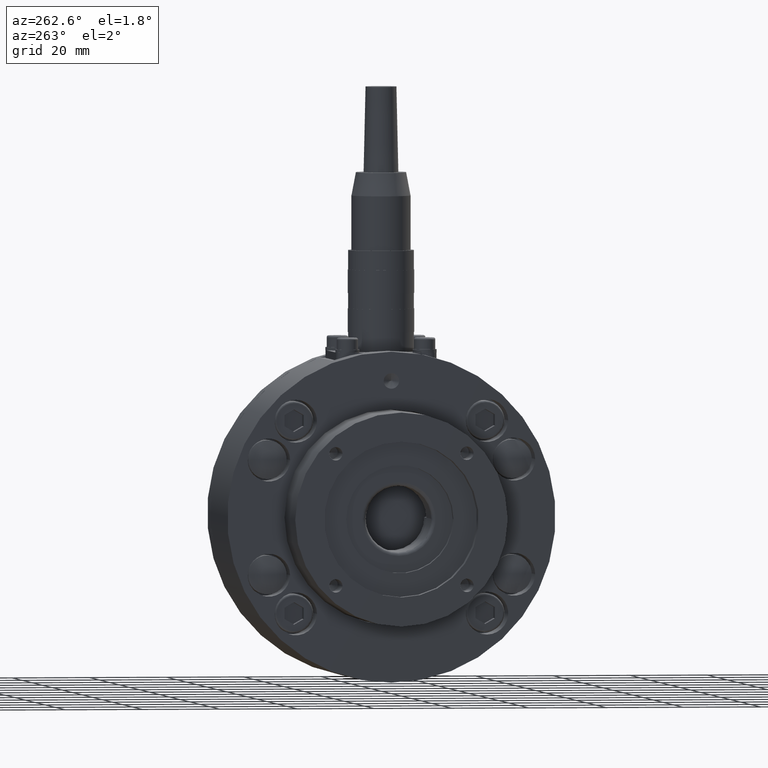
[diagram: clean part render]
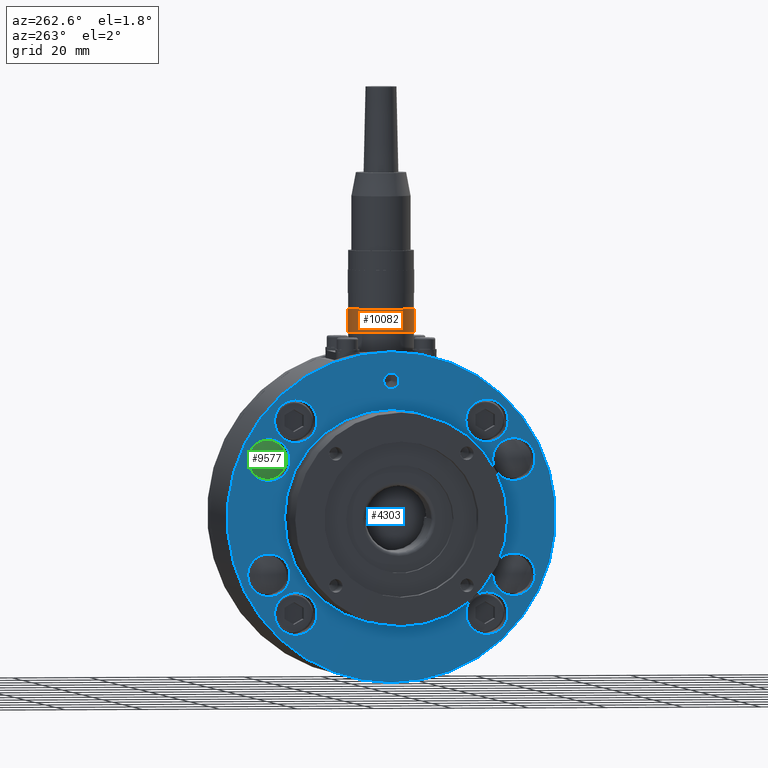
[diagram: same view with three faces highlighted in distinct colors, each labeled with its STEP entity id]
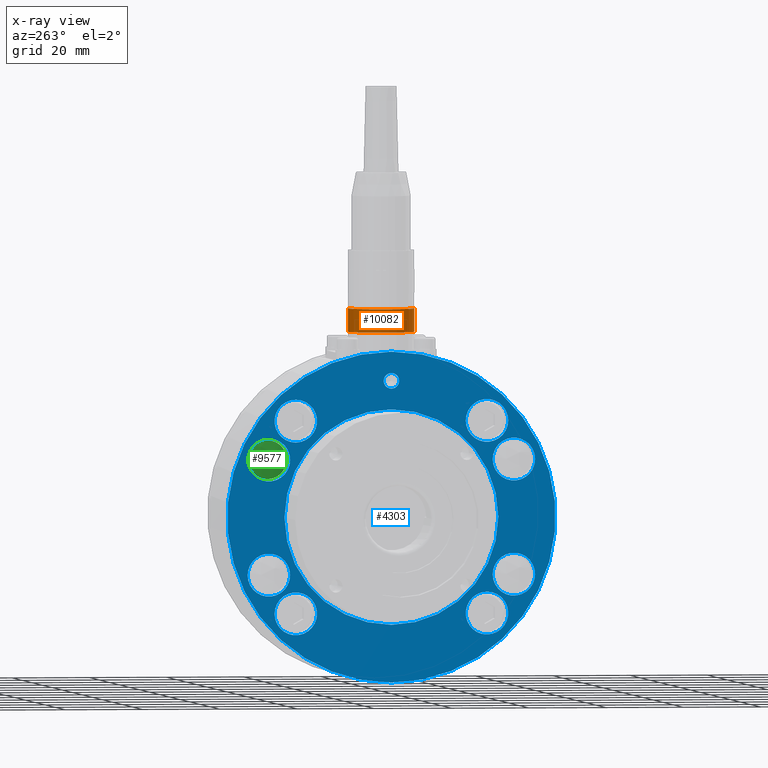
[diagram: x-ray of the same camera — body ghosted, the three highlighted faces saturated]
A machine part, auxiliary view with three faces highlighted in distinct colors.
The next image is the same camera in x-ray (body ghosted, the three faces saturated) — at least one of them is partly hidden behind the body in this view.
Their STEP definitions:

[orange] entity #10082 — the highlighted cylindrical surface (edge-blend (fillet) strip) has radius 8.6 mm, axis along (-0, -0, -1).
#10041=CARTESIAN_POINT('',(109.999999999999970,49.999999999999993,0.0));
#10042=DIRECTION('',(1.0,0.0,0.0));
#10043=DIRECTION('',(0.0,1.0,0.0));
#10044=AXIS2_PLACEMENT_3D('',#10041,#10042,#10043);
#10045=CYLINDRICAL_SURFACE('',#10044,8.600000000000001);
#10046=CARTESIAN_POINT('',(112.999999999999970,58.599999999999994,0.0));
#10047=VERTEX_POINT('',#10046);
#10048=CARTESIAN_POINT('',(106.999999999999970,58.599999999999994,0.0));
#10049=VERTEX_POINT('',#10048);
#10050=CARTESIAN_POINT('',(112.999999999999970,58.599999999999994,0.0));
#10051=DIRECTION('',(-1.0,0.0,0.0));
#10052=VECTOR('',#10051,6.0);
#10053=LINE('',#10050,#10052);
#10054=EDGE_CURVE('',#10047,#10049,#10053,.T.);
#10055=ORIENTED_EDGE('',*,*,#10054,.F.);
#10056=CARTESIAN_POINT('',(112.999999999999970,41.399999999999991,-1.053161E-015));
#10057=VERTEX_POINT('',#10056);
#10058=CARTESIAN_POINT('',(112.999999999999970,49.999999999999993,0.0));
#10059=DIRECTION('',(1.0,0.0,0.0));
#10060=DIRECTION('',(0.0,1.0,0.0));
#10061=AXIS2_PLACEMENT_3D('',#10058,#10059,#10060);
#10062=CIRCLE('',#10061,8.600000000000001);
#10063=EDGE_CURVE('',#10057,#10047,#10062,.T.);
#10064=ORIENTED_EDGE('',*,*,#10063,.F.);
#10065=CARTESIAN_POINT('',(106.999999999999970,41.399999999999991,-1.053161E-015));
#10066=VERTEX_POINT('',#10065);
#10067=CARTESIAN_POINT('',(112.999999999999970,41.399999999999991,-1.053161E-015));
#10068=DIRECTION('',(-1.0,0.0,0.0));
#10069=VECTOR('',#10068,6.0);
#10070=LINE('',#10067,#10069);
#10071=EDGE_CURVE('',#10057,#10066,#10070,.T.);
#10072=ORIENTED_EDGE('',*,*,#10071,.T.);
#10073=CARTESIAN_POINT('',(106.999999999999970,49.999999999999993,0.0));
#10074=DIRECTION('',(1.0,0.0,0.0));
#10075=DIRECTION('',(0.0,1.0,0.0));
#10076=AXIS2_PLACEMENT_3D('',#10073,#10074,#10075);
#10077=CIRCLE('',#10076,8.600000000000001);
#10078=EDGE_CURVE('',#10066,#10049,#10077,.T.);
#10079=ORIENTED_EDGE('',*,*,#10078,.T.);
#10080=EDGE_LOOP('',(#10055,#10064,#10072,#10079));
#10081=FACE_OUTER_BOUND('',#10080,.T.);
#10082=ADVANCED_FACE('',(#10081),#10045,.T.);

[blue] entity #4303 — the highlighted planar face has unit normal (-1, 0, 0).
#2096=CARTESIAN_POINT('',(-19.0,26.073737341529167,30.248737341529164));
#2097=VERTEX_POINT('',#2096);
#2106=CARTESIAN_POINT('',(-19.0,26.073737341529167,19.248737341529164));
#2107=VERTEX_POINT('',#2106);
#2108=CARTESIAN_POINT('',(-19.0,26.073737341529167,24.748737341529164));
#2109=DIRECTION('',(1.0,0.0,0.0));
#2110=DIRECTION('',(0.0,0.0,1.0));
#2111=AXIS2_PLACEMENT_3D('',#2108,#2109,#2110);
#2112=CIRCLE('',#2111,5.500000000000000);
#2113=EDGE_CURVE('',#2107,#2097,#2112,.T.);
#2180=CARTESIAN_POINT('',(-19.0,31.573737341529171,-24.748737341529161));
#2181=VERTEX_POINT('',#2180);
#2190=CARTESIAN_POINT('',(-19.0,20.573737341529171,-24.748737341529164));
#2191=VERTEX_POINT('',#2190);
#2192=CARTESIAN_POINT('',(-19.0,26.073737341529171,-24.748737341529161));
#2193=DIRECTION('',(1.0,0.0,0.0));
#2194=DIRECTION('',(0.0,1.0,0.0));
#2195=AXIS2_PLACEMENT_3D('',#2192,#2193,#2194);
#2196=CIRCLE('',#2195,5.500000000000000);
#2197=EDGE_CURVE('',#2191,#2181,#2196,.T.);
#2264=CARTESIAN_POINT('',(-19.0,-23.423737341529165,-30.248737341529168));
#2265=VERTEX_POINT('',#2264);
#2274=CARTESIAN_POINT('',(-19.0,-23.423737341529165,-19.248737341529168));
#2275=VERTEX_POINT('',#2274);
#2276=CARTESIAN_POINT('',(-19.0,-23.423737341529165,-24.748737341529168));
#2277=DIRECTION('',(1.0,0.0,0.0));
#2278=DIRECTION('',(0.0,0.0,-1.0));
#2279=AXIS2_PLACEMENT_3D('',#2276,#2277,#2278);
#2280=CIRCLE('',#2279,5.500000000000000);
#2281=EDGE_CURVE('',#2275,#2265,#2280,.T.);
#2348=CARTESIAN_POINT('',(-19.0,-28.923737341529172,24.748737341529161));
#2349=VERTEX_POINT('',#2348);
#2358=CARTESIAN_POINT('',(-19.0,-17.923737341529172,24.748737341529164));
#2359=VERTEX_POINT('',#2358);
#2360=CARTESIAN_POINT('',(-19.0,-23.423737341529172,24.748737341529161));
#2361=DIRECTION('',(1.0,0.0,0.0));
#2362=DIRECTION('',(0.0,-1.0,0.0));
#2363=AXIS2_PLACEMENT_3D('',#2360,#2361,#2362);
#2364=CIRCLE('',#2363,5.500000000000000);
#2365=EDGE_CURVE('',#2359,#2349,#2364,.T.);
#2392=CARTESIAN_POINT('',(-19.0,43.824999999999989,0.0));
#2393=VERTEX_POINT('',#2392);
#2426=CARTESIAN_POINT('',(-19.0,-41.174999999999983,-5.204577E-015));
#2427=VERTEX_POINT('',#2426);
#2434=CARTESIAN_POINT('',(-19.0,1.324999999999999,0.0));
#2435=DIRECTION('',(1.0,0.0,0.0));
#2436=DIRECTION('',(0.0,1.0,0.0));
#2437=AXIS2_PLACEMENT_3D('',#2434,#2435,#2436);
#2438=CIRCLE('',#2437,42.499999999999986);
#2439=EDGE_CURVE('',#2427,#2393,#2438,.T.);
#2709=CARTESIAN_POINT('',(-19.0,38.325000000000003,0.0));
#2710=VERTEX_POINT('',#2709);
#2719=CARTESIAN_POINT('',(-19.0,34.324999999999996,-2.449213E-016));
#2720=VERTEX_POINT('',#2719);
#2721=CARTESIAN_POINT('',(-19.0,36.325000000000003,0.0));
#2722=DIRECTION('',(1.0,0.0,0.0));
#2723=DIRECTION('',(0.0,1.0,0.0));
#2724=AXIS2_PLACEMENT_3D('',#2721,#2722,#2723);
#2725=CIRCLE('',#2724,2.000000000000006);
#2726=EDGE_CURVE('',#2720,#2710,#2725,.T.);
#2744=CARTESIAN_POINT('',(-19.0,29.0,0.0));
#2745=VERTEX_POINT('',#2744);
#2806=CARTESIAN_POINT('',(-19.0,-26.350000000000001,-3.389098E-015));
#2807=VERTEX_POINT('',#2806);
#2814=CARTESIAN_POINT('',(-19.0,1.324999999999999,0.0));
#2815=DIRECTION('',(1.0,0.0,0.0));
#2816=DIRECTION('',(0.0,1.0,0.0));
#2817=AXIS2_PLACEMENT_3D('',#2814,#2815,#2816);
#2818=CIRCLE('',#2817,27.675000000000001);
#2819=EDGE_CURVE('',#2745,#2807,#2818,.T.);
#2871=CARTESIAN_POINT('',(-19.0,16.116639160924482,-26.220772546282749));
#2872=VERTEX_POINT('',#2871);
#2881=CARTESIAN_POINT('',(-19.0,16.116639160924482,-37.220772546282745));
#2882=VERTEX_POINT('',#2881);
#2883=CARTESIAN_POINT('',(-19.0,16.116639160924482,-31.720772546282749));
#2884=DIRECTION('',(1.0,0.0,0.0));
#2885=DIRECTION('',(0.0,0.0,1.0));
#2886=AXIS2_PLACEMENT_3D('',#2883,#2884,#2885);
#2887=CIRCLE('',#2886,5.500000000000000);
#2888=EDGE_CURVE('',#2882,#2872,#2887,.T.);
#2955=CARTESIAN_POINT('',(-19.0,16.116639160924482,37.220772546282745));
#2956=VERTEX_POINT('',#2955);
#2965=CARTESIAN_POINT('',(-19.0,16.116639160924482,26.220772546282749));
#2966=VERTEX_POINT('',#2965);
#2967=CARTESIAN_POINT('',(-19.0,16.116639160924482,31.720772546282749));
#2968=DIRECTION('',(1.0,0.0,0.0));
#2969=DIRECTION('',(0.0,0.0,1.0));
#2970=AXIS2_PLACEMENT_3D('',#2967,#2968,#2969);
#2971=CIRCLE('',#2970,5.500000000000000);
#2972=EDGE_CURVE('',#2966,#2956,#2971,.T.);
#3039=CARTESIAN_POINT('',(-19.0,-13.466639160924480,-26.220772546282756));
#3040=VERTEX_POINT('',#3039);
#3049=CARTESIAN_POINT('',(-19.0,-13.466639160924480,-37.220772546282760));
#3050=VERTEX_POINT('',#3049);
#3051=CARTESIAN_POINT('',(-19.0,-13.466639160924480,-31.720772546282756));
#3052=DIRECTION('',(1.0,0.0,0.0));
#3053=DIRECTION('',(0.0,0.0,1.0));
#3054=AXIS2_PLACEMENT_3D('',#3051,#3052,#3053);
#3055=CIRCLE('',#3054,5.500000000000000);
#3056=EDGE_CURVE('',#3050,#3040,#3055,.T.);
#3123=CARTESIAN_POINT('',(-19.0,-13.466639160924480,37.220772546282745));
#3124=VERTEX_POINT('',#3123);
#3133=CARTESIAN_POINT('',(-19.0,-13.466639160924480,26.220772546282742));
#3134=VERTEX_POINT('',#3133);
#3135=CARTESIAN_POINT('',(-19.0,-13.466639160924480,31.720772546282742));
#3136=DIRECTION('',(1.0,0.0,0.0));
#3137=DIRECTION('',(0.0,0.0,1.0));
#3138=AXIS2_PLACEMENT_3D('',#3135,#3136,#3137);
#3139=CIRCLE('',#3138,5.500000000000000);
#3140=EDGE_CURVE('',#3134,#3124,#3139,.T.);
#3194=CARTESIAN_POINT('',(-19.0,-13.466639160924480,31.720772546282742));
#3195=DIRECTION('',(1.0,0.0,0.0));
#3196=DIRECTION('',(0.0,0.0,1.0));
#3197=AXIS2_PLACEMENT_3D('',#3194,#3195,#3196);
#3198=CIRCLE('',#3197,5.500000000000000);
#3199=EDGE_CURVE('',#3124,#3134,#3198,.T.);
#3256=CARTESIAN_POINT('',(-19.0,-13.466639160924480,-31.720772546282756));
#3257=DIRECTION('',(1.0,0.0,0.0));
#3258=DIRECTION('',(0.0,0.0,1.0));
#3259=AXIS2_PLACEMENT_3D('',#3256,#3257,#3258);
#3260=CIRCLE('',#3259,5.500000000000000);
#3261=EDGE_CURVE('',#3040,#3050,#3260,.T.);
#3318=CARTESIAN_POINT('',(-19.0,16.116639160924482,31.720772546282749));
#3319=DIRECTION('',(1.0,0.0,0.0));
#3320=DIRECTION('',(0.0,0.0,1.0));
#3321=AXIS2_PLACEMENT_3D('',#3318,#3319,#3320);
#3322=CIRCLE('',#3321,5.500000000000000);
#3323=EDGE_CURVE('',#2956,#2966,#3322,.T.);
#3380=CARTESIAN_POINT('',(-19.0,16.116639160924482,-31.720772546282749));
#3381=DIRECTION('',(1.0,0.0,0.0));
#3382=DIRECTION('',(0.0,0.0,1.0));
#3383=AXIS2_PLACEMENT_3D('',#3380,#3381,#3382);
#3384=CIRCLE('',#3383,5.500000000000000);
#3385=EDGE_CURVE('',#2872,#2882,#3384,.T.);
#3592=CARTESIAN_POINT('',(-19.0,1.324999999999999,0.0));
#3593=DIRECTION('',(1.0,0.0,0.0));
#3594=DIRECTION('',(0.0,1.0,0.0));
#3595=AXIS2_PLACEMENT_3D('',#3592,#3593,#3594);
#3596=CIRCLE('',#3595,27.675000000000001);
#3597=EDGE_CURVE('',#2807,#2745,#3596,.T.);
#3674=CARTESIAN_POINT('',(-19.0,36.325000000000003,0.0));
#3675=DIRECTION('',(1.0,0.0,0.0));
#3676=DIRECTION('',(0.0,1.0,0.0));
#3677=AXIS2_PLACEMENT_3D('',#3674,#3675,#3676);
#3678=CIRCLE('',#3677,2.000000000000006);
#3679=EDGE_CURVE('',#2710,#2720,#3678,.T.);
#3903=CARTESIAN_POINT('',(-19.0,1.324999999999999,0.0));
#3904=DIRECTION('',(1.0,0.0,0.0));
#3905=DIRECTION('',(0.0,1.0,0.0));
#3906=AXIS2_PLACEMENT_3D('',#3903,#3904,#3905);
#3907=CIRCLE('',#3906,42.499999999999986);
#3908=EDGE_CURVE('',#2393,#2427,#3907,.T.);
#3957=CARTESIAN_POINT('',(-19.0,-23.423737341529172,24.748737341529161));
#3958=DIRECTION('',(1.0,0.0,0.0));
#3959=DIRECTION('',(0.0,-1.0,0.0));
#3960=AXIS2_PLACEMENT_3D('',#3957,#3958,#3959);
#3961=CIRCLE('',#3960,5.500000000000000);
#3962=EDGE_CURVE('',#2349,#2359,#3961,.T.);
#4019=CARTESIAN_POINT('',(-19.0,-23.423737341529165,-24.748737341529168));
#4020=DIRECTION('',(1.0,0.0,0.0));
#4021=DIRECTION('',(0.0,0.0,-1.0));
#4022=AXIS2_PLACEMENT_3D('',#4019,#4020,#4021);
#4023=CIRCLE('',#4022,5.500000000000000);
#4024=EDGE_CURVE('',#2265,#2275,#4023,.T.);
#4081=CARTESIAN_POINT('',(-19.0,26.073737341529171,-24.748737341529161));
#4082=DIRECTION('',(1.0,0.0,0.0));
#4083=DIRECTION('',(0.0,1.0,0.0));
#4084=AXIS2_PLACEMENT_3D('',#4081,#4082,#4083);
#4085=CIRCLE('',#4084,5.500000000000000);
#4086=EDGE_CURVE('',#2181,#2191,#4085,.T.);
#4143=CARTESIAN_POINT('',(-19.0,26.073737341529167,24.748737341529164));
#4144=DIRECTION('',(1.0,0.0,0.0));
#4145=DIRECTION('',(0.0,0.0,1.0));
#4146=AXIS2_PLACEMENT_3D('',#4143,#4144,#4145);
#4147=CIRCLE('',#4146,5.500000000000000);
#4148=EDGE_CURVE('',#2097,#2107,#4147,.T.);
#4254=CARTESIAN_POINT('',(-19.0,36.625000000000000,0.0));
#4255=DIRECTION('',(-1.0,0.0,0.0));
#4256=DIRECTION('',(0.0,0.0,1.0));
#4257=AXIS2_PLACEMENT_3D('',#4254,#4255,#4256);
#4258=PLANE('',#4257);
#4259=ORIENTED_EDGE('',*,*,#3908,.F.);
#4260=ORIENTED_EDGE('',*,*,#2439,.F.);
#4261=EDGE_LOOP('',(#4259,#4260));
#4262=FACE_OUTER_BOUND('',#4261,.T.);
#4263=ORIENTED_EDGE('',*,*,#3199,.T.);
#4264=ORIENTED_EDGE('',*,*,#3140,.T.);
#4265=EDGE_LOOP('',(#4263,#4264));
#4266=FACE_BOUND('',#4265,.T.);
#4267=ORIENTED_EDGE('',*,*,#3261,.T.);
#4268=ORIENTED_EDGE('',*,*,#3056,.T.);
#4269=EDGE_LOOP('',(#4267,#4268));
#4270=FACE_BOUND('',#4269,.T.);
#4271=ORIENTED_EDGE('',*,*,#3323,.T.);
#4272=ORIENTED_EDGE('',*,*,#2972,.T.);
#4273=EDGE_LOOP('',(#4271,#4272));
#4274=FACE_BOUND('',#4273,.T.);
#4275=ORIENTED_EDGE('',*,*,#3385,.T.);
#4276=ORIENTED_EDGE('',*,*,#2888,.T.);
#4277=EDGE_LOOP('',(#4275,#4276));
#4278=FACE_BOUND('',#4277,.T.);
#4279=ORIENTED_EDGE('',*,*,#3679,.T.);
#4280=ORIENTED_EDGE('',*,*,#2726,.T.);
#4281=EDGE_LOOP('',(#4279,#4280));
#4282=FACE_BOUND('',#4281,.T.);
#4283=ORIENTED_EDGE('',*,*,#3962,.T.);
#4284=ORIENTED_EDGE('',*,*,#2365,.T.);
#4285=EDGE_LOOP('',(#4283,#4284));
#4286=FACE_BOUND('',#4285,.T.);
#4287=ORIENTED_EDGE('',*,*,#4024,.T.);
#4288=ORIENTED_EDGE('',*,*,#2281,.T.);
#4289=EDGE_LOOP('',(#4287,#4288));
#4290=FACE_BOUND('',#4289,.T.);
#4291=ORIENTED_EDGE('',*,*,#4086,.T.);
#4292=ORIENTED_EDGE('',*,*,#2197,.T.);
#4293=EDGE_LOOP('',(#4291,#4292));
#4294=FACE_BOUND('',#4293,.T.);
#4295=ORIENTED_EDGE('',*,*,#4148,.T.);
#4296=ORIENTED_EDGE('',*,*,#2113,.T.);
#4297=EDGE_LOOP('',(#4295,#4296));
#4298=FACE_BOUND('',#4297,.T.);
#4299=ORIENTED_EDGE('',*,*,#2819,.T.);
#4300=ORIENTED_EDGE('',*,*,#3597,.T.);
#4301=EDGE_LOOP('',(#4299,#4300));
#4302=FACE_BOUND('',#4301,.T.);
#4303=ADVANCED_FACE('',(#4262,#4266,#4270,#4274,#4278,#4282,#4286,#4290,#4294,#4298,#4302),#4258,.T.);

[green] entity #9577 — the highlighted spherical surface has radius 13 mm.
#9431=CARTESIAN_POINT('',(-93.081696354466601,-91.814282078099154,-0.500000000000000));
#9432=VERTEX_POINT('',#9431);
#9448=CARTESIAN_POINT('',(-93.081696354466601,-101.814282078099150,-0.500000000000001));
#9449=VERTEX_POINT('',#9448);
#9456=CARTESIAN_POINT('',(-93.081696354466601,-96.814282078099154,-0.500000000000000));
#9457=DIRECTION('',(1.0,0.0,0.0));
#9458=DIRECTION('',(0.0,1.0,0.0));
#9459=AXIS2_PLACEMENT_3D('',#9456,#9457,#9458);
#9460=CIRCLE('',#9459,5.0);
#9461=EDGE_CURVE('',#9449,#9432,#9460,.T.);
#9562=CARTESIAN_POINT('',(-81.081696354466601,-96.814282078099154,-0.500000000000000));
#9563=DIRECTION('',(0.0,0.0,1.0));
#9564=DIRECTION('',(1.0,0.0,0.0));
#9565=AXIS2_PLACEMENT_3D('',#9562,#9563,#9564);
#9566=SPHERICAL_SURFACE('',#9565,13.0);
#9567=CARTESIAN_POINT('',(-93.081696354466601,-96.814282078099154,-0.500000000000000));
#9568=DIRECTION('',(1.0,0.0,0.0));
#9569=DIRECTION('',(0.0,1.0,0.0));
#9570=AXIS2_PLACEMENT_3D('',#9567,#9568,#9569);
#9571=CIRCLE('',#9570,5.0);
#9572=EDGE_CURVE('',#9432,#9449,#9571,.T.);
#9573=ORIENTED_EDGE('',*,*,#9572,.F.);
#9574=ORIENTED_EDGE('',*,*,#9461,.F.);
#9575=EDGE_LOOP('',(#9573,#9574));
#9576=FACE_OUTER_BOUND('',#9575,.T.);
#9577=ADVANCED_FACE('',(#9576),#9566,.T.);